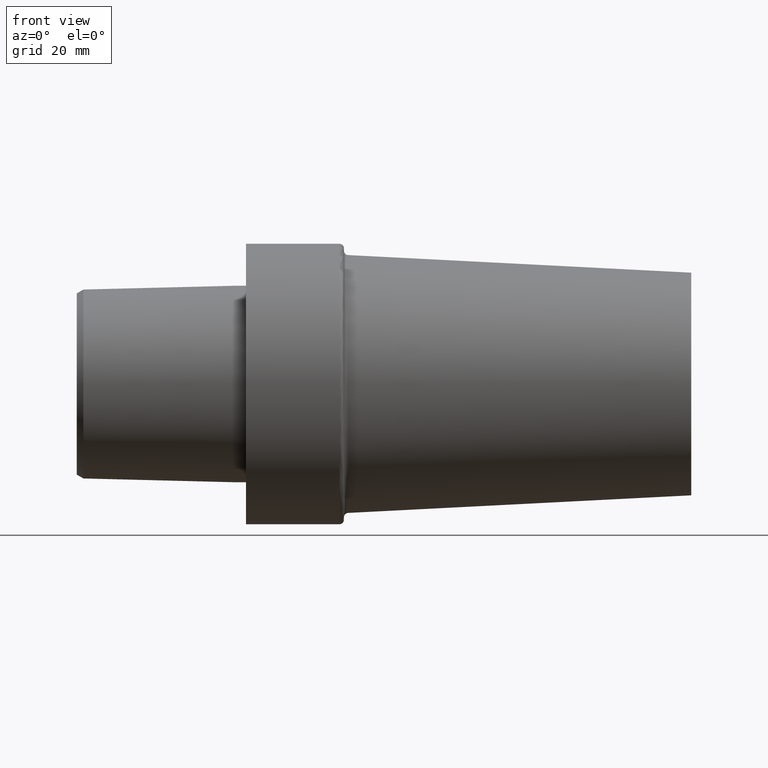
[diagram: clean part render]
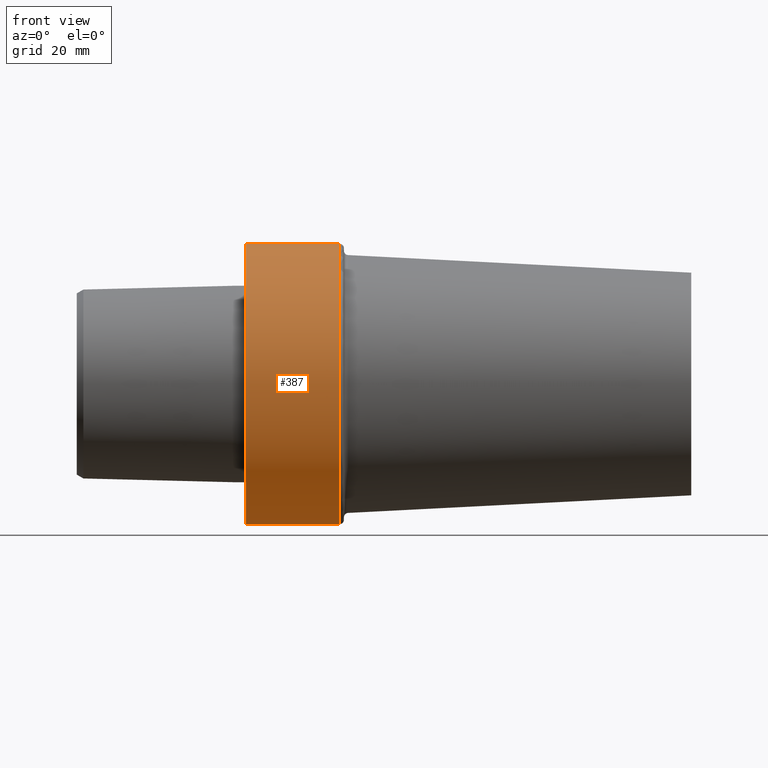
[diagram: same view with one face highlighted and labeled with its STEP entity id]
A machine part, front view. The second image highlights one B-rep face of the part: STEP entity #387.
In plain terms, the highlighted cylindrical surface (partial cylindrical patch) has radius 31.4925 mm, axis along (-1, 0, 0).
Its self-contained STEP definition (entity closure, byte-faithful):
#12 = CARTESIAN_POINT ( 'NONE',  ( 20.99999997694130016, 0.000000000000000000, 31.49249997071599338 ) ) ;
#13 = DIRECTION ( 'NONE',  ( 0.000000000000000000, 0.000000000000000000, 1.000000000000000000 ) ) ;
#45 = EDGE_CURVE ( 'NONE', #375, #377, #117, .T. ) ;
#83 = AXIS2_PLACEMENT_3D ( 'NONE', #168, #516, #513 ) ;
#86 = EDGE_CURVE ( 'NONE', #488, #255, #342, .T. ) ;
#102 = CIRCLE ( 'NONE', #170, 31.49249997071599338 ) ;
#110 = EDGE_CURVE ( 'NONE', #255, #377, #414, .T. ) ;
#117 = LINE ( 'NONE', #528, #420 ) ;
#127 = CARTESIAN_POINT ( 'NONE',  ( -1.638711037459195739E-09, 0.000000000000000000, 0.000000000000000000 ) ) ;
#152 = DIRECTION ( 'NONE',  ( -1.000000000000000000, 0.000000000000000000, 0.000000000000000000 ) ) ;
#168 = CARTESIAN_POINT ( 'NONE',  ( -37.99999996124000035, 0.000000000000000000, 0.000000000000000000 ) ) ;
#170 = AXIS2_PLACEMENT_3D ( 'NONE', #462, #426, #207 ) ;
#173 = FACE_OUTER_BOUND ( 'NONE', #261, .T. ) ;
#177 = ORIENTED_EDGE ( 'NONE', *, *, #45, .T. ) ;
#187 = ORIENTED_EDGE ( 'NONE', *, *, #86, .F. ) ;
#196 = ORIENTED_EDGE ( 'NONE', *, *, #110, .F. ) ;
#207 = DIRECTION ( 'NONE',  ( 0.000000000000000000, 0.000000000000000000, 1.000000000000000000 ) ) ;
#255 = VERTEX_POINT ( 'NONE', #308 ) ;
#261 = EDGE_LOOP ( 'NONE', ( #187, #415, #177, #196 ) ) ;
#294 = CYLINDRICAL_SURFACE ( 'NONE', #83, 31.49249997071599338 ) ;
#308 = CARTESIAN_POINT ( 'NONE',  ( -1.638711037459195739E-09, 3.856718928628543502E-15, -31.49249997071599338 ) ) ;
#339 = VECTOR ( 'NONE', #425, 1000.000000000000000 ) ;
#342 = LINE ( 'NONE', #510, #339 ) ;
#375 = VERTEX_POINT ( 'NONE', #12 ) ;
#377 = VERTEX_POINT ( 'NONE', #509 ) ;
#387 = ADVANCED_FACE ( 'NONE', ( #173 ), #294, .T. ) ;
#390 = DIRECTION ( 'NONE',  ( -1.000000000000000000, 0.000000000000000000, 0.000000000000000000 ) ) ;
#394 = EDGE_CURVE ( 'NONE', #488, #375, #102, .T. ) ;
#396 = CARTESIAN_POINT ( 'NONE',  ( 20.99999997694130016, 3.856718928628543502E-15, -31.49249997071599338 ) ) ;
#414 = CIRCLE ( 'NONE', #524, 31.49249997071599338 ) ;
#415 = ORIENTED_EDGE ( 'NONE', *, *, #394, .T. ) ;
#420 = VECTOR ( 'NONE', #152, 1000.000000000000000 ) ;
#425 = DIRECTION ( 'NONE',  ( -1.000000000000000000, 0.000000000000000000, 0.000000000000000000 ) ) ;
#426 = DIRECTION ( 'NONE',  ( -1.000000000000000000, 0.000000000000000000, 0.000000000000000000 ) ) ;
#462 = CARTESIAN_POINT ( 'NONE',  ( 20.99999997694130016, 0.000000000000000000, 0.000000000000000000 ) ) ;
#488 = VERTEX_POINT ( 'NONE', #396 ) ;
#509 = CARTESIAN_POINT ( 'NONE',  ( -1.638711037459195739E-09, 0.000000000000000000, 31.49249997071599338 ) ) ;
#510 = CARTESIAN_POINT ( 'NONE',  ( -37.99999996124000035, 3.856718928628543502E-15, -31.49249997071599338 ) ) ;
#513 = DIRECTION ( 'NONE',  ( 0.000000000000000000, 0.000000000000000000, 1.000000000000000000 ) ) ;
#516 = DIRECTION ( 'NONE',  ( -1.000000000000000000, 0.000000000000000000, 0.000000000000000000 ) ) ;
#524 = AXIS2_PLACEMENT_3D ( 'NONE', #127, #390, #13 ) ;
#528 = CARTESIAN_POINT ( 'NONE',  ( -37.99999996124000035, 0.000000000000000000, 31.49249997071599338 ) ) ;